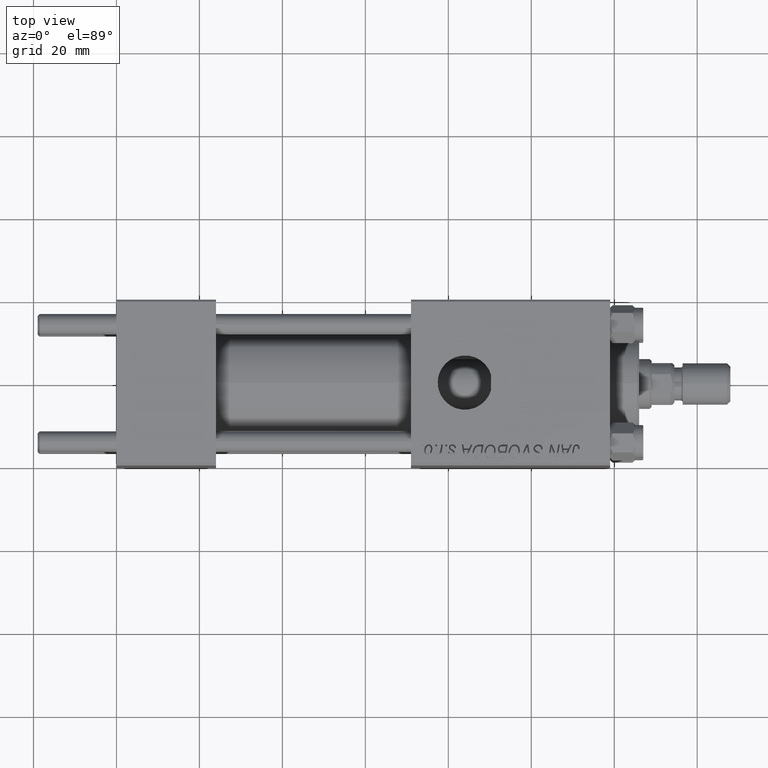
[diagram: clean part render]
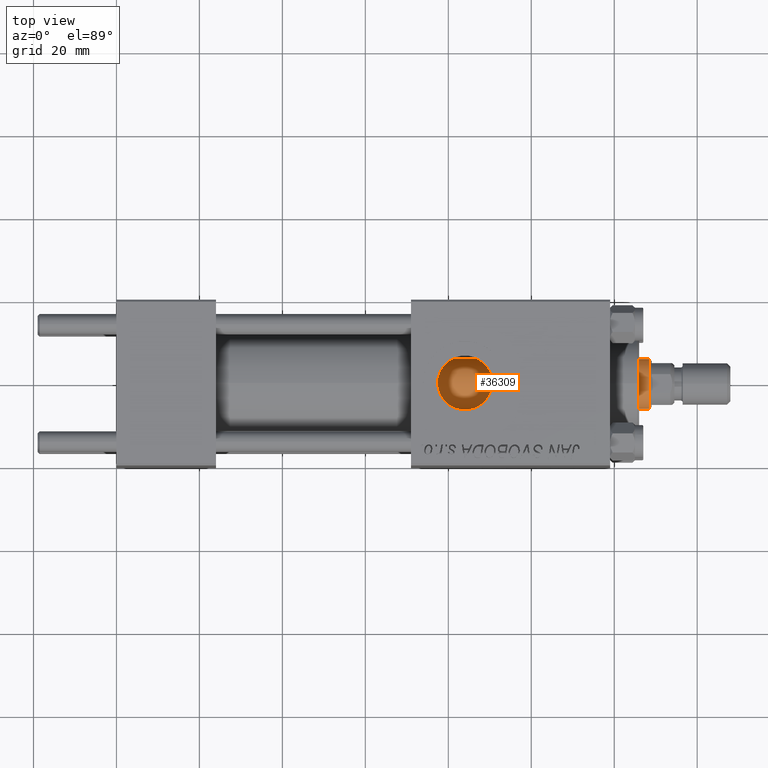
[diagram: same view with one face highlighted and labeled with its STEP entity id]
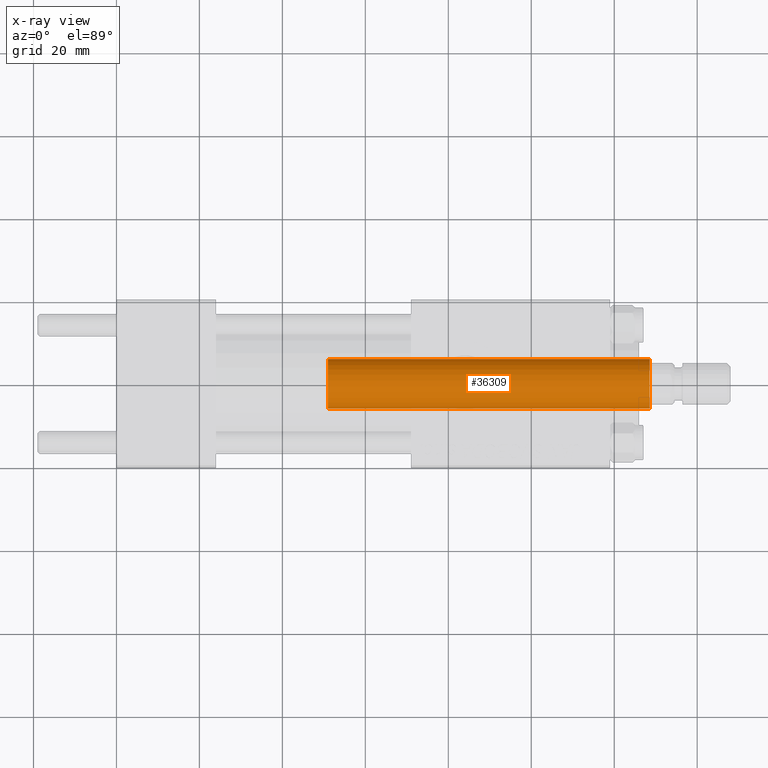
[diagram: x-ray of the same camera — body ghosted, the highlighted face saturated]
A machine part, top view. The second image highlights one B-rep face of the part: STEP entity #36309.
The next image is the same camera in x-ray: the body ghosted, the highlighted face saturated — about 1% of this face is hidden behind the body in this view.
In plain terms, the highlighted cylindrical surface (edge-blend (fillet) strip) has radius 6 mm, axis along (-1, 0, 0).
Its self-contained STEP definition (entity closure, byte-faithful):
#201 = CARTESIAN_POINT ( 'NONE',  ( -6.000000000000000888, 0.000000000000000000, 27.00000000000000000 ) ) ;
#3059 = ORIENTED_EDGE ( 'NONE', *, *, #23636, .T. ) ;
#3267 = DIRECTION ( 'NONE',  ( -0.000000000000000000, -0.000000000000000000, -1.000000000000000000 ) ) ;
#7513 = DIRECTION ( 'NONE',  ( -1.000000000000000000, 0.000000000000000000, 0.000000000000000000 ) ) ;
#7760 = CARTESIAN_POINT ( 'NONE',  ( 0.000000000000000000, 0.000000000000000000, 105.0000000000000000 ) ) ;
#10381 = EDGE_CURVE ( 'NONE', #21693, #33266, #30820, .T. ) ;
#10841 = DIRECTION ( 'NONE',  ( 1.000000000000000000, 0.000000000000000000, 0.000000000000000000 ) ) ;
#11002 = LINE ( 'NONE', #25804, #28593 ) ;
#11020 = AXIS2_PLACEMENT_3D ( 'NONE', #7760, #46977, #7513 ) ;
#11283 = CARTESIAN_POINT ( 'NONE',  ( 6.000000000000000888, 7.347880794884120722E-16, 104.5000000000000142 ) ) ;
#12304 = EDGE_CURVE ( 'NONE', #21693, #36129, #45566, .T. ) ;
#15496 = ORIENTED_EDGE ( 'NONE', *, *, #10381, .T. ) ;
#16473 = CARTESIAN_POINT ( 'NONE',  ( -6.000000000000000888, 0.000000000000000000, 104.5000000000000142 ) ) ;
#19087 = CARTESIAN_POINT ( 'NONE',  ( 6.000000000000000888, 7.347880794884120722E-16, 105.0000000000000000 ) ) ;
#19730 = ORIENTED_EDGE ( 'NONE', *, *, #12304, .F. ) ;
#20237 = CYLINDRICAL_SURFACE ( 'NONE', #11020, 6.000000000000000888 ) ;
#21693 = VERTEX_POINT ( 'NONE', #11283 ) ;
#22664 = DIRECTION ( 'NONE',  ( 1.000000000000000000, 0.000000000000000000, 0.000000000000000000 ) ) ;
#23311 = FACE_OUTER_BOUND ( 'NONE', #32862, .T. ) ;
#23636 = EDGE_CURVE ( 'NONE', #33266, #49720, #11002, .T. ) ;
#23801 = AXIS2_PLACEMENT_3D ( 'NONE', #37160, #25727, #22664 ) ;
#25320 = ORIENTED_EDGE ( 'NONE', *, *, #29272, .T. ) ;
#25727 = DIRECTION ( 'NONE',  ( 0.000000000000000000, 0.000000000000000000, 1.000000000000000000 ) ) ;
#25804 = CARTESIAN_POINT ( 'NONE',  ( -6.000000000000000888, 0.000000000000000000, 105.0000000000000000 ) ) ;
#27147 = CARTESIAN_POINT ( 'NONE',  ( 0.000000000000000000, 0.000000000000000000, 104.5000000000000142 ) ) ;
#28593 = VECTOR ( 'NONE', #34173, 1000.000000000000000 ) ;
#28674 = CARTESIAN_POINT ( 'NONE',  ( 6.000000000000000888, 7.347880794884120722E-16, 27.00000000000000000 ) ) ;
#29272 = EDGE_CURVE ( 'NONE', #49720, #36129, #48983, .T. ) ;
#30820 = CIRCLE ( 'NONE', #34027, 6.000000000000000888 ) ;
#31648 = VECTOR ( 'NONE', #3267, 1000.000000000000000 ) ;
#32862 = EDGE_LOOP ( 'NONE', ( #19730, #15496, #3059, #25320 ) ) ;
#33266 = VERTEX_POINT ( 'NONE', #16473 ) ;
#34027 = AXIS2_PLACEMENT_3D ( 'NONE', #27147, #42923, #10841 ) ;
#34173 = DIRECTION ( 'NONE',  ( -0.000000000000000000, -0.000000000000000000, -1.000000000000000000 ) ) ;
#36129 = VERTEX_POINT ( 'NONE', #28674 ) ;
#36309 = ADVANCED_FACE ( 'NONE', ( #23311 ), #20237, .T. ) ;
#37160 = CARTESIAN_POINT ( 'NONE',  ( 0.000000000000000000, 0.000000000000000000, 27.00000000000000000 ) ) ;
#42923 = DIRECTION ( 'NONE',  ( 0.000000000000000000, 0.000000000000000000, -1.000000000000000000 ) ) ;
#45566 = LINE ( 'NONE', #19087, #31648 ) ;
#46977 = DIRECTION ( 'NONE',  ( -0.000000000000000000, -0.000000000000000000, -1.000000000000000000 ) ) ;
#48983 = CIRCLE ( 'NONE', #23801, 6.000000000000000888 ) ;
#49720 = VERTEX_POINT ( 'NONE', #201 ) ;